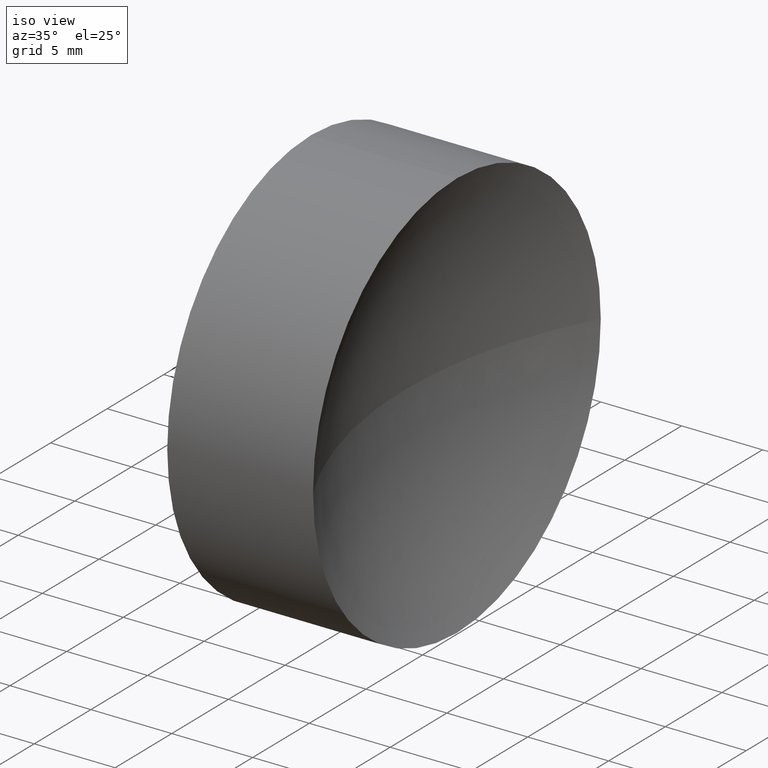
[diagram: clean part render]
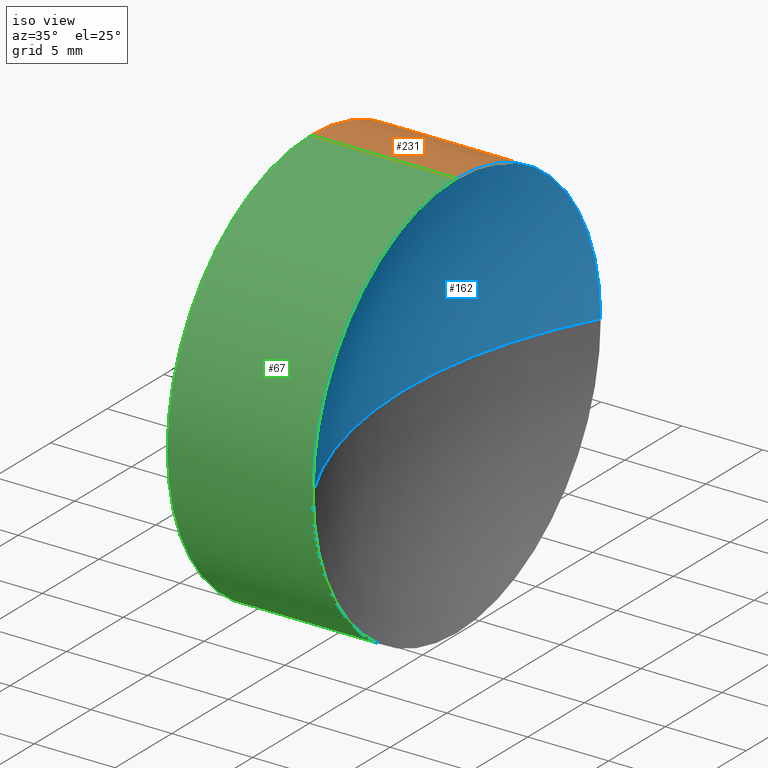
[diagram: same view with three faces highlighted in distinct colors, each labeled with its STEP entity id]
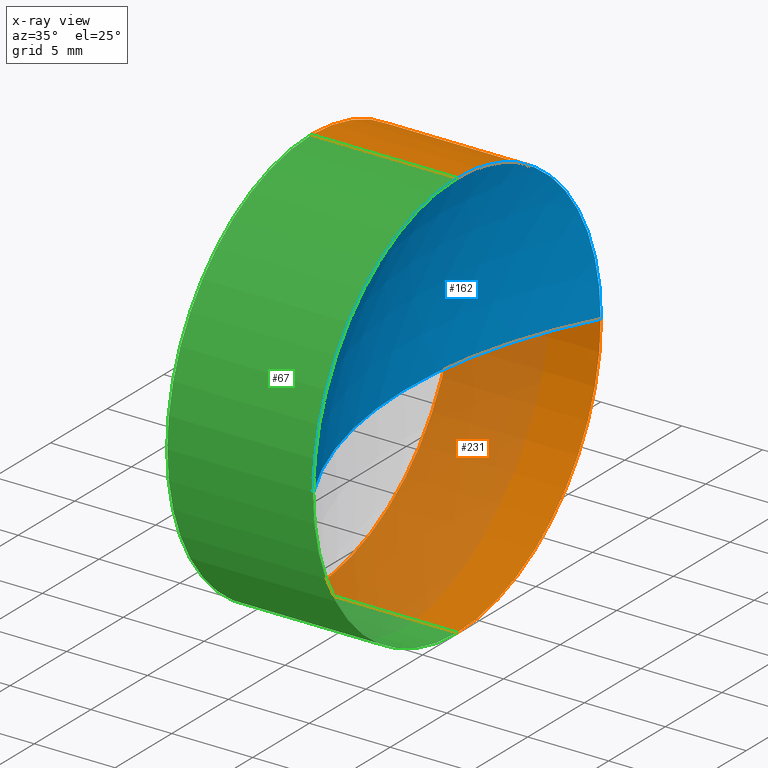
[diagram: x-ray of the same camera — body ghosted, the three highlighted faces saturated]
A machine part, iso view with three faces highlighted in distinct colors.
The next image is the same camera in x-ray (body ghosted, the three faces saturated) — at least one of them is partly hidden behind the body in this view.
Their STEP definitions:

[orange] entity #231 — the highlighted cylindrical surface (partial cylindrical patch) has radius 12.7 mm, axis along (-1, -0, -0).
#7 = VERTEX_POINT ( 'NONE', #180 ) ;
#9 = CIRCLE ( 'NONE', #130, 12.69999999999999600 ) ;
#15 = CARTESIAN_POINT ( 'NONE',  ( 91.58498976213175500, 52.17808229838991700, 0.0000000000000000000 ) ) ;
#16 = EDGE_CURVE ( 'NONE', #19, #40, #56, .T. ) ;
#19 = VERTEX_POINT ( 'NONE', #166 ) ;
#28 = DIRECTION ( 'NONE',  ( -1.000000000000000000, -0.0000000000000000000, -0.0000000000000000000 ) ) ;
#40 = VERTEX_POINT ( 'NONE', #68 ) ;
#53 = VECTOR ( 'NONE', #28, 1000.000000000000000 ) ;
#56 = LINE ( 'NONE', #164, #114 ) ;
#58 = VERTEX_POINT ( 'NONE', #72 ) ;
#59 = DIRECTION ( 'NONE',  ( 0.0000000000000000000, 0.0000000000000000000, 1.000000000000000000 ) ) ;
#62 = DIRECTION ( 'NONE',  ( -1.000000000000000000, -0.0000000000000000000, -0.0000000000000000000 ) ) ;
#68 = CARTESIAN_POINT ( 'NONE',  ( 91.58498976213175500, 52.17808229838991700, -12.69999999999999600 ) ) ;
#72 = CARTESIAN_POINT ( 'NONE',  ( 100.5958981745881700, 52.17808229838991700, 12.69999999999999600 ) ) ;
#82 = CARTESIAN_POINT ( 'NONE',  ( 84.89972222827364600, 52.17808229838991700, 12.69999999999999600 ) ) ;
#94 = VERTEX_POINT ( 'NONE', #131 ) ;
#95 = CARTESIAN_POINT ( 'NONE',  ( 100.5958981745881700, 52.17808229838991700, 0.0000000000000000000 ) ) ;
#97 = ORIENTED_EDGE ( 'NONE', *, *, #157, .F. ) ;
#99 = EDGE_CURVE ( 'NONE', #58, #7, #165, .T. ) ;
#106 = LINE ( 'NONE', #82, #53 ) ;
#108 = ORIENTED_EDGE ( 'NONE', *, *, #216, .F. ) ;
#109 = AXIS2_PLACEMENT_3D ( 'NONE', #95, #184, #222 ) ;
#110 = AXIS2_PLACEMENT_3D ( 'NONE', #134, #191, #118 ) ;
#114 = VECTOR ( 'NONE', #127, 1000.000000000000000 ) ;
#117 = AXIS2_PLACEMENT_3D ( 'NONE', #129, #204, #153 ) ;
#118 = DIRECTION ( 'NONE',  ( 0.0000000000000000000, 0.0000000000000000000, 1.000000000000000000 ) ) ;
#121 = CIRCLE ( 'NONE', #117, 12.69999999999999600 ) ;
#127 = DIRECTION ( 'NONE',  ( -1.000000000000000000, -0.0000000000000000000, -0.0000000000000000000 ) ) ;
#129 = CARTESIAN_POINT ( 'NONE',  ( 91.58498976213175500, 52.17808229838991700, 0.0000000000000000000 ) ) ;
#130 = AXIS2_PLACEMENT_3D ( 'NONE', #15, #62, #209 ) ;
#131 = CARTESIAN_POINT ( 'NONE',  ( 91.58498976213175500, 64.87808229838989900, 0.0000000000000000000 ) ) ;
#134 = CARTESIAN_POINT ( 'NONE',  ( 84.89972222827364600, 52.17808229838991700, 0.0000000000000000000 ) ) ;
#138 = EDGE_LOOP ( 'NONE', ( #143, #214, #108, #97, #167, #146 ) ) ;
#142 = EDGE_CURVE ( 'NONE', #7, #19, #149, .T. ) ;
#143 = ORIENTED_EDGE ( 'NONE', *, *, #142, .T. ) ;
#146 = ORIENTED_EDGE ( 'NONE', *, *, #99, .T. ) ;
#149 = CIRCLE ( 'NONE', #109, 12.69999999999999600 ) ;
#153 = DIRECTION ( 'NONE',  ( 0.0000000000000000000, 0.0000000000000000000, 1.000000000000000000 ) ) ;
#154 = CARTESIAN_POINT ( 'NONE',  ( 100.5958981745881700, 52.17808229838991700, 0.0000000000000000000 ) ) ;
#157 = EDGE_CURVE ( 'NONE', #229, #94, #121, .T. ) ;
#164 = CARTESIAN_POINT ( 'NONE',  ( 84.89972222827364600, 52.17808229838991700, -12.69999999999999600 ) ) ;
#165 = CIRCLE ( 'NONE', #206, 12.69999999999999600 ) ;
#166 = CARTESIAN_POINT ( 'NONE',  ( 100.5958981745881700, 52.17808229838991700, -12.69999999999999600 ) ) ;
#167 = ORIENTED_EDGE ( 'NONE', *, *, #208, .F. ) ;
#180 = CARTESIAN_POINT ( 'NONE',  ( 100.5958981745881700, 64.87808229838991300, 1.555301434917137800E-015 ) ) ;
#184 = DIRECTION ( 'NONE',  ( -1.000000000000000000, -0.0000000000000000000, -0.0000000000000000000 ) ) ;
#191 = DIRECTION ( 'NONE',  ( -1.000000000000000000, -0.0000000000000000000, -0.0000000000000000000 ) ) ;
#203 = FACE_OUTER_BOUND ( 'NONE', #138, .T. ) ;
#204 = DIRECTION ( 'NONE',  ( -1.000000000000000000, -0.0000000000000000000, -0.0000000000000000000 ) ) ;
#206 = AXIS2_PLACEMENT_3D ( 'NONE', #154, #225, #59 ) ;
#208 = EDGE_CURVE ( 'NONE', #58, #229, #106, .T. ) ;
#209 = DIRECTION ( 'NONE',  ( 0.0000000000000000000, 0.0000000000000000000, 1.000000000000000000 ) ) ;
#214 = ORIENTED_EDGE ( 'NONE', *, *, #16, .T. ) ;
#216 = EDGE_CURVE ( 'NONE', #94, #40, #9, .T. ) ;
#220 = CYLINDRICAL_SURFACE ( 'NONE', #110, 12.69999999999999600 ) ;
#222 = DIRECTION ( 'NONE',  ( 0.0000000000000000000, 0.0000000000000000000, 1.000000000000000000 ) ) ;
#225 = DIRECTION ( 'NONE',  ( -1.000000000000000000, -0.0000000000000000000, -0.0000000000000000000 ) ) ;
#229 = VERTEX_POINT ( 'NONE', #230 ) ;
#230 = CARTESIAN_POINT ( 'NONE',  ( 91.58498976213175500, 52.17808229838991700, 12.69999999999999600 ) ) ;
#231 = ADVANCED_FACE ( 'NONE', ( #203 ), #220, .T. ) ;

[blue] entity #162 — the highlighted spherical surface has radius 26.4 mm.
#2 = ORIENTED_EDGE ( 'NONE', *, *, #4, .T. ) ;
#3 = FACE_OUTER_BOUND ( 'NONE', #119, .T. ) ;
#4 = EDGE_CURVE ( 'NONE', #159, #125, #23, .T. ) ;
#6 = CARTESIAN_POINT ( 'NONE',  ( 100.5958981745881700, 39.47808229838992100, 0.0000000000000000000 ) ) ;
#7 = VERTEX_POINT ( 'NONE', #180 ) ;
#20 = DIRECTION ( 'NONE',  ( 0.0000000000000000000, -1.224646799147353200E-016, 1.000000000000000000 ) ) ;
#23 = CIRCLE ( 'NONE', #37, 26.40000000000000600 ) ;
#29 = CIRCLE ( 'NONE', #96, 12.69999999999999600 ) ;
#30 = DIRECTION ( 'NONE',  ( -1.000000000000000000, 0.0000000000000000000, 0.0000000000000000000 ) ) ;
#32 = CIRCLE ( 'NONE', #212, 26.40000000000000600 ) ;
#33 = CARTESIAN_POINT ( 'NONE',  ( 123.7404439683599800, 52.17808229838991700, 0.0000000000000000000 ) ) ;
#35 = CARTESIAN_POINT ( 'NONE',  ( 123.7404439683599800, 52.17808229838991700, 0.0000000000000000000 ) ) ;
#37 = AXIS2_PLACEMENT_3D ( 'NONE', #33, #86, #30 ) ;
#48 = EDGE_CURVE ( 'NONE', #7, #125, #32, .T. ) ;
#58 = VERTEX_POINT ( 'NONE', #72 ) ;
#59 = DIRECTION ( 'NONE',  ( 0.0000000000000000000, 0.0000000000000000000, 1.000000000000000000 ) ) ;
#71 = SPHERICAL_SURFACE ( 'NONE', #168, 26.40000000000000600 ) ;
#72 = CARTESIAN_POINT ( 'NONE',  ( 100.5958981745881700, 52.17808229838991700, 12.69999999999999600 ) ) ;
#84 = EDGE_CURVE ( 'NONE', #159, #58, #29, .T. ) ;
#86 = DIRECTION ( 'NONE',  ( 0.0000000000000000000, 0.0000000000000000000, -1.000000000000000000 ) ) ;
#96 = AXIS2_PLACEMENT_3D ( 'NONE', #202, #181, #100 ) ;
#99 = EDGE_CURVE ( 'NONE', #58, #7, #165, .T. ) ;
#100 = DIRECTION ( 'NONE',  ( 0.0000000000000000000, 0.0000000000000000000, 1.000000000000000000 ) ) ;
#115 = DIRECTION ( 'NONE',  ( 0.0000000000000000000, 0.0000000000000000000, 1.000000000000000000 ) ) ;
#119 = EDGE_LOOP ( 'NONE', ( #178, #224, #192, #2 ) ) ;
#124 = CARTESIAN_POINT ( 'NONE',  ( 97.34044396835997800, 52.17808229838991700, 0.0000000000000000000 ) ) ;
#125 = VERTEX_POINT ( 'NONE', #124 ) ;
#154 = CARTESIAN_POINT ( 'NONE',  ( 100.5958981745881700, 52.17808229838991700, 0.0000000000000000000 ) ) ;
#159 = VERTEX_POINT ( 'NONE', #6 ) ;
#162 = ADVANCED_FACE ( 'NONE', ( #3 ), #71, .F. ) ;
#165 = CIRCLE ( 'NONE', #206, 12.69999999999999600 ) ;
#168 = AXIS2_PLACEMENT_3D ( 'NONE', #223, #115, #213 ) ;
#170 = DIRECTION ( 'NONE',  ( 0.0000000000000000000, -1.000000000000000000, -1.224646799147353200E-016 ) ) ;
#178 = ORIENTED_EDGE ( 'NONE', *, *, #48, .F. ) ;
#180 = CARTESIAN_POINT ( 'NONE',  ( 100.5958981745881700, 64.87808229838991300, 1.555301434917137800E-015 ) ) ;
#181 = DIRECTION ( 'NONE',  ( -1.000000000000000000, -0.0000000000000000000, -0.0000000000000000000 ) ) ;
#192 = ORIENTED_EDGE ( 'NONE', *, *, #84, .F. ) ;
#202 = CARTESIAN_POINT ( 'NONE',  ( 100.5958981745881700, 52.17808229838991700, 0.0000000000000000000 ) ) ;
#206 = AXIS2_PLACEMENT_3D ( 'NONE', #154, #225, #59 ) ;
#212 = AXIS2_PLACEMENT_3D ( 'NONE', #35, #20, #170 ) ;
#213 = DIRECTION ( 'NONE',  ( 0.0000000000000000000, -1.000000000000000000, 0.0000000000000000000 ) ) ;
#223 = CARTESIAN_POINT ( 'NONE',  ( 123.7404439683599800, 52.17808229838991700, 0.0000000000000000000 ) ) ;
#224 = ORIENTED_EDGE ( 'NONE', *, *, #99, .F. ) ;
#225 = DIRECTION ( 'NONE',  ( -1.000000000000000000, -0.0000000000000000000, -0.0000000000000000000 ) ) ;

[green] entity #67 — the highlighted cylindrical surface (partial cylindrical patch) has radius 12.7 mm, axis along (-1, -0, -0).
#6 = CARTESIAN_POINT ( 'NONE',  ( 100.5958981745881700, 39.47808229838992100, 0.0000000000000000000 ) ) ;
#10 = DIRECTION ( 'NONE',  ( 0.0000000000000000000, 0.0000000000000000000, 1.000000000000000000 ) ) ;
#14 = CIRCLE ( 'NONE', #185, 12.69999999999999600 ) ;
#16 = EDGE_CURVE ( 'NONE', #19, #40, #56, .T. ) ;
#19 = VERTEX_POINT ( 'NONE', #166 ) ;
#27 = CARTESIAN_POINT ( 'NONE',  ( 100.5958981745881700, 52.17808229838991700, 0.0000000000000000000 ) ) ;
#28 = DIRECTION ( 'NONE',  ( -1.000000000000000000, -0.0000000000000000000, -0.0000000000000000000 ) ) ;
#29 = CIRCLE ( 'NONE', #96, 12.69999999999999600 ) ;
#40 = VERTEX_POINT ( 'NONE', #68 ) ;
#41 = CARTESIAN_POINT ( 'NONE',  ( 91.58498976213175500, 52.17808229838991700, 0.0000000000000000000 ) ) ;
#42 = AXIS2_PLACEMENT_3D ( 'NONE', #107, #73, #51 ) ;
#51 = DIRECTION ( 'NONE',  ( 0.0000000000000000000, 0.0000000000000000000, 1.000000000000000000 ) ) ;
#53 = VECTOR ( 'NONE', #28, 1000.000000000000000 ) ;
#56 = LINE ( 'NONE', #164, #114 ) ;
#58 = VERTEX_POINT ( 'NONE', #72 ) ;
#60 = CIRCLE ( 'NONE', #101, 12.69999999999999600 ) ;
#65 = EDGE_LOOP ( 'NONE', ( #150, #145, #196, #211, #83, #92 ) ) ;
#67 = ADVANCED_FACE ( 'NONE', ( #76 ), #215, .T. ) ;
#68 = CARTESIAN_POINT ( 'NONE',  ( 91.58498976213175500, 52.17808229838991700, -12.69999999999999600 ) ) ;
#70 = EDGE_CURVE ( 'NONE', #40, #160, #60, .T. ) ;
#72 = CARTESIAN_POINT ( 'NONE',  ( 100.5958981745881700, 52.17808229838991700, 12.69999999999999600 ) ) ;
#73 = DIRECTION ( 'NONE',  ( -1.000000000000000000, -0.0000000000000000000, -0.0000000000000000000 ) ) ;
#74 = DIRECTION ( 'NONE',  ( 0.0000000000000000000, 0.0000000000000000000, 1.000000000000000000 ) ) ;
#76 = FACE_OUTER_BOUND ( 'NONE', #65, .T. ) ;
#82 = CARTESIAN_POINT ( 'NONE',  ( 84.89972222827364600, 52.17808229838991700, 12.69999999999999600 ) ) ;
#83 = ORIENTED_EDGE ( 'NONE', *, *, #128, .F. ) ;
#84 = EDGE_CURVE ( 'NONE', #159, #58, #29, .T. ) ;
#92 = ORIENTED_EDGE ( 'NONE', *, *, #70, .F. ) ;
#96 = AXIS2_PLACEMENT_3D ( 'NONE', #202, #181, #100 ) ;
#100 = DIRECTION ( 'NONE',  ( 0.0000000000000000000, 0.0000000000000000000, 1.000000000000000000 ) ) ;
#101 = AXIS2_PLACEMENT_3D ( 'NONE', #200, #171, #10 ) ;
#106 = LINE ( 'NONE', #82, #53 ) ;
#107 = CARTESIAN_POINT ( 'NONE',  ( 84.89972222827364600, 52.17808229838991700, 0.0000000000000000000 ) ) ;
#114 = VECTOR ( 'NONE', #127, 1000.000000000000000 ) ;
#127 = DIRECTION ( 'NONE',  ( -1.000000000000000000, -0.0000000000000000000, -0.0000000000000000000 ) ) ;
#128 = EDGE_CURVE ( 'NONE', #160, #229, #14, .T. ) ;
#139 = CIRCLE ( 'NONE', #140, 12.69999999999999600 ) ;
#140 = AXIS2_PLACEMENT_3D ( 'NONE', #27, #210, #174 ) ;
#145 = ORIENTED_EDGE ( 'NONE', *, *, #193, .T. ) ;
#150 = ORIENTED_EDGE ( 'NONE', *, *, #16, .F. ) ;
#159 = VERTEX_POINT ( 'NONE', #6 ) ;
#160 = VERTEX_POINT ( 'NONE', #207 ) ;
#164 = CARTESIAN_POINT ( 'NONE',  ( 84.89972222827364600, 52.17808229838991700, -12.69999999999999600 ) ) ;
#166 = CARTESIAN_POINT ( 'NONE',  ( 100.5958981745881700, 52.17808229838991700, -12.69999999999999600 ) ) ;
#171 = DIRECTION ( 'NONE',  ( -1.000000000000000000, -0.0000000000000000000, -0.0000000000000000000 ) ) ;
#174 = DIRECTION ( 'NONE',  ( 0.0000000000000000000, 0.0000000000000000000, 1.000000000000000000 ) ) ;
#181 = DIRECTION ( 'NONE',  ( -1.000000000000000000, -0.0000000000000000000, -0.0000000000000000000 ) ) ;
#185 = AXIS2_PLACEMENT_3D ( 'NONE', #41, #205, #74 ) ;
#193 = EDGE_CURVE ( 'NONE', #19, #159, #139, .T. ) ;
#196 = ORIENTED_EDGE ( 'NONE', *, *, #84, .T. ) ;
#200 = CARTESIAN_POINT ( 'NONE',  ( 91.58498976213175500, 52.17808229838991700, 0.0000000000000000000 ) ) ;
#202 = CARTESIAN_POINT ( 'NONE',  ( 100.5958981745881700, 52.17808229838991700, 0.0000000000000000000 ) ) ;
#205 = DIRECTION ( 'NONE',  ( -1.000000000000000000, -0.0000000000000000000, -0.0000000000000000000 ) ) ;
#207 = CARTESIAN_POINT ( 'NONE',  ( 91.58498976213175500, 39.47808229838992100, -1.555301434917137800E-015 ) ) ;
#208 = EDGE_CURVE ( 'NONE', #58, #229, #106, .T. ) ;
#210 = DIRECTION ( 'NONE',  ( -1.000000000000000000, -0.0000000000000000000, -0.0000000000000000000 ) ) ;
#211 = ORIENTED_EDGE ( 'NONE', *, *, #208, .T. ) ;
#215 = CYLINDRICAL_SURFACE ( 'NONE', #42, 12.69999999999999600 ) ;
#229 = VERTEX_POINT ( 'NONE', #230 ) ;
#230 = CARTESIAN_POINT ( 'NONE',  ( 91.58498976213175500, 52.17808229838991700, 12.69999999999999600 ) ) ;